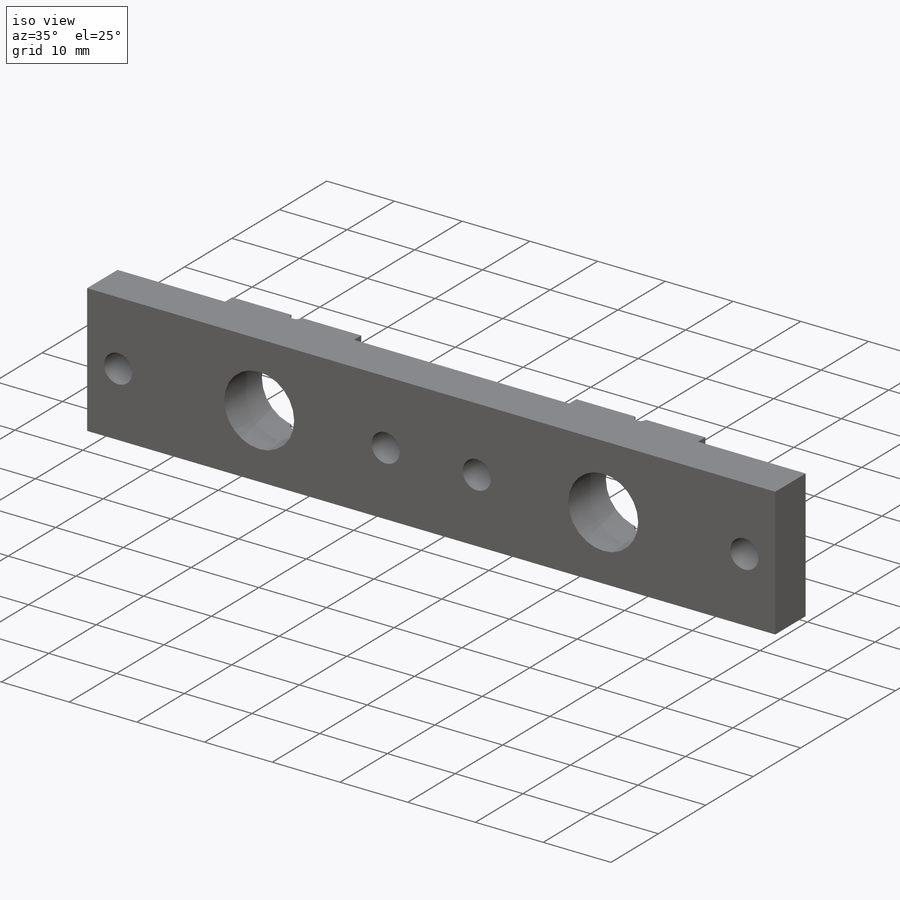
[diagram: iso view]
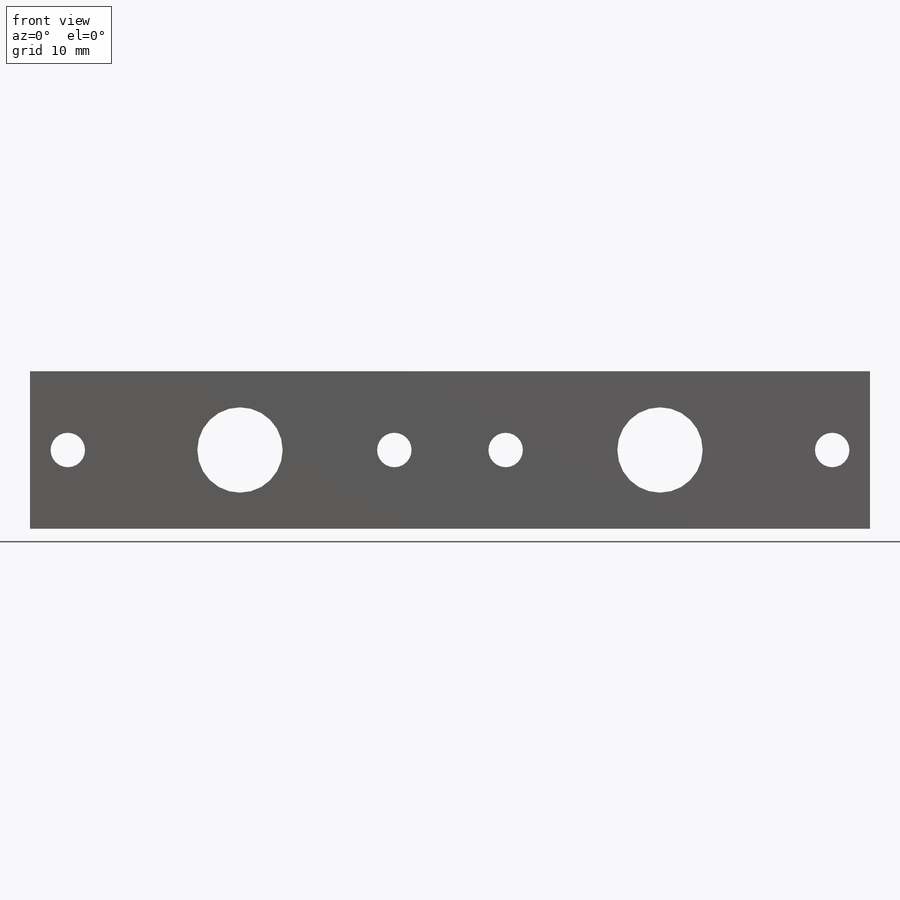
[diagram: front view]
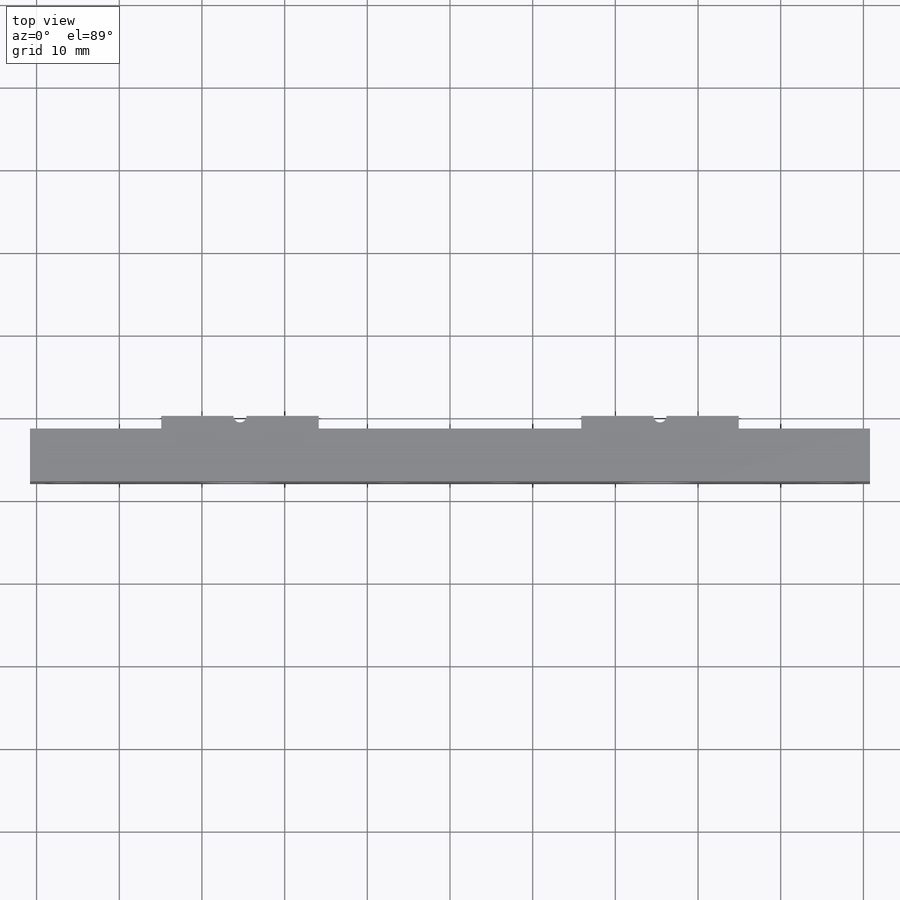
[diagram: top view]
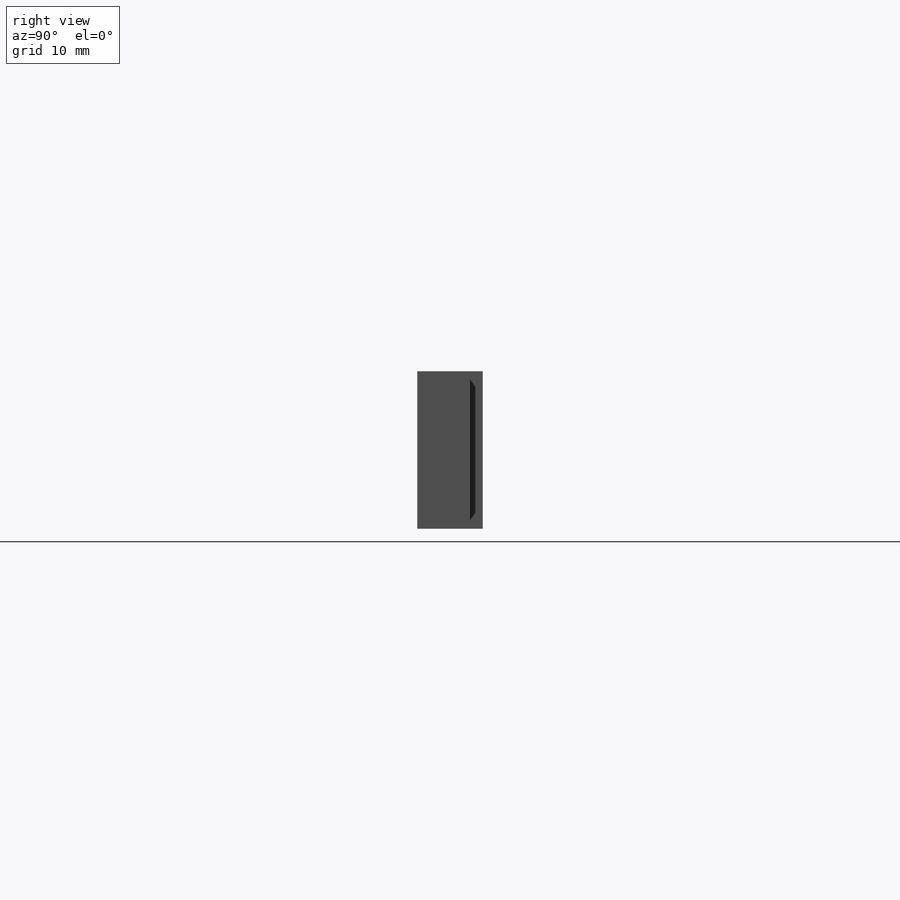
[diagram: right view]
SOLIDWORKS PART (.sldprt)
format: sldprt  version: not decoded by parser v0  size: 296,960 bytes
history: native  units: mm
features: sketch x8, hole x3, material x1, extrude x1, cut_extrude x1 (+16 scaffold rows collapsed)
feature tree (30):
  scaffold x16  (default folders/planes/origin — collapsed)
  material  "6061-T6 Al"
  sketch  "Sketch1"  dims[D1=101.6mm D2=19.05mm]
  extrude  "Extrude1"  Depth=7.9248mm
  hole  "13/32 (0.40625) Diameter Hole1"  Diameter=10.31875mm Depth=7.9248mm
  sketch  "Sketch3"  dims[D1=50.8mm D2=25.4mm]
  sketch  "Sketch4"  dims[hole-wizard template sketch: 60 standard entries collapsed; hole parameters kept: c18.Thru Hole Depth=7.9248mm]
  hole  "#8-32 Tapped Hole1"  Diameter=4.1656mm Depth=7.9248mm
  sketch  "Sketch7"  dims[c1.D3=~10.31875mm c1.D4=~10.31875mm c1.D1=20.828mm c1.D2=18.669mm c2.D3=18.669mm c2.D4=20.828mm]
  sketch  "Sketch6"  dims[hole-wizard template sketch: 59 standard entries collapsed; hole parameters kept: c18.Thread Major Dia.=4.1656mm c18.Thru Tap Drill Depth=7.9248mm]
  sketch  "Sketch9"  dims[c1.D1=~10.31875mm c1.D2=~10.31875mm c1.D3=~10.31875mm c1.D4=~10.31875mm c2.D1=9.525mm c2.D2=9.525mm c2.D3=9.525mm c2.D4=9.525mm]
  cut_extrude  "Extrude3"  Depth=1.524mm
  hole  "1/16 (0.0625) Diameter Hole1"  Diameter=1.5875mm Depth=19.05mm
  sketch  "Sketch12"
  sketch  "Sketch13"  dims[hole-wizard template sketch: 60 standard entries collapsed; hole parameters kept: c18.Thru Hole Depth=19.05mm]
decode coverage: 12 of 13 modeling features carry decoded parameters
note: ~ marks probable driven/reference dimensions
note: suppression state not decoded; provenance and decode notes live in map.json
